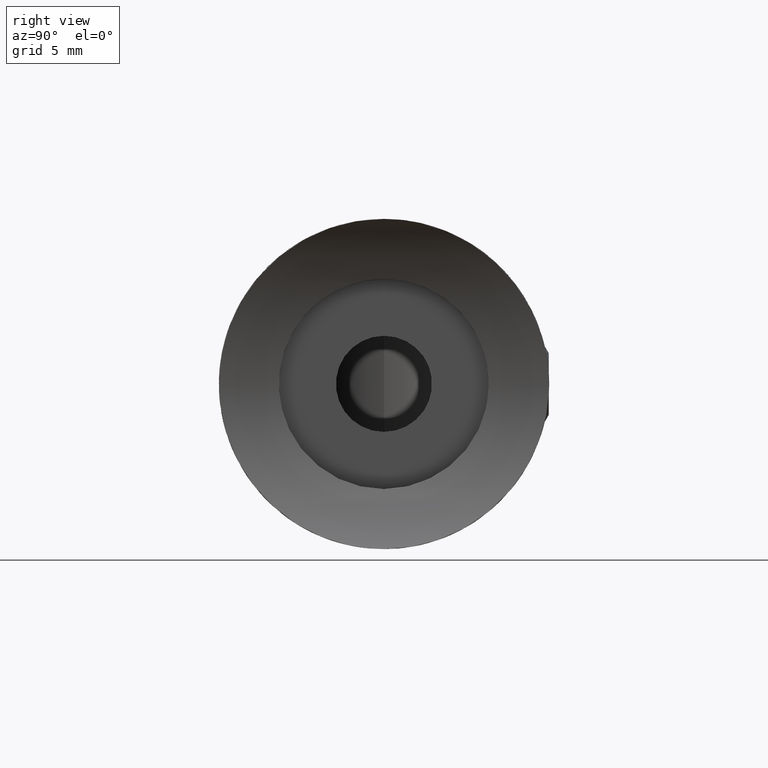
[diagram: clean part render]
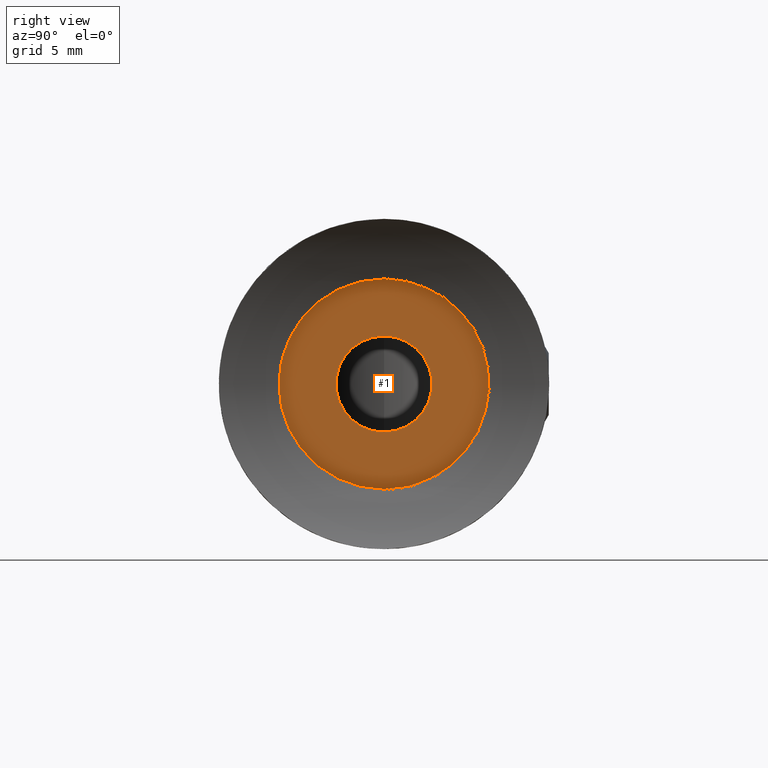
[diagram: same view with one face highlighted and labeled with its STEP entity id]
A machine part, right view. The second image highlights one B-rep face of the part: STEP entity #1.
In plain terms, the highlighted planar face has unit normal (1, 0, 0).
Its self-contained STEP definition (entity closure, byte-faithful):
#1 = ADVANCED_FACE ( 'NONE', ( #1910, #2771 ), #4035, .T. ) ;
#15 = DIRECTION ( 'NONE',  ( 0.0000000000000000000, 0.0000000000000000000, -1.000000000000000000 ) ) ;
#135 = DIRECTION ( 'NONE',  ( 0.0000000000000000000, 0.0000000000000000000, -1.000000000000000000 ) ) ;
#137 = ORIENTED_EDGE ( 'NONE', *, *, #4302, .F. ) ;
#143 = VERTEX_POINT ( 'NONE', #1832 ) ;
#175 = CARTESIAN_POINT ( 'NONE',  ( -8.288489208633095000, 0.0000000000000000000, 0.0000000000000000000 ) ) ;
#189 = ORIENTED_EDGE ( 'NONE', *, *, #1508, .F. ) ;
#323 = AXIS2_PLACEMENT_3D ( 'NONE', #3852, #2123, #15 ) ;
#367 = CIRCLE ( 'NONE', #1458, 6.999999999999999100 ) ;
#403 = AXIS2_PLACEMENT_3D ( 'NONE', #1451, #1470, #135 ) ;
#539 = VERTEX_POINT ( 'NONE', #1591 ) ;
#623 = DIRECTION ( 'NONE',  ( 1.000000000000000000, -0.0000000000000000000, -0.0000000000000000000 ) ) ;
#1160 = CIRCLE ( 'NONE', #403, 3.199999999999998000 ) ;
#1191 = EDGE_LOOP ( 'NONE', ( #4619, #2872 ) ) ;
#1433 = DIRECTION ( 'NONE',  ( 1.000000000000000000, 0.0000000000000000000, -0.0000000000000000000 ) ) ;
#1451 = CARTESIAN_POINT ( 'NONE',  ( -8.288489208633095000, 0.0000000000000000000, 0.0000000000000000000 ) ) ;
#1458 = AXIS2_PLACEMENT_3D ( 'NONE', #175, #623, #2164 ) ;
#1470 = DIRECTION ( 'NONE',  ( 1.000000000000000000, -0.0000000000000000000, -0.0000000000000000000 ) ) ;
#1508 = EDGE_CURVE ( 'NONE', #143, #4652, #3824, .T. ) ;
#1591 = CARTESIAN_POINT ( 'NONE',  ( -8.288489208633095000, 8.572527594031472200E-016, 6.999999999999999100 ) ) ;
#1832 = CARTESIAN_POINT ( 'NONE',  ( -8.288489208633095000, 0.0000000000000000000, -3.199999999999998000 ) ) ;
#1910 = FACE_OUTER_BOUND ( 'NONE', #1191, .T. ) ;
#2041 = AXIS2_PLACEMENT_3D ( 'NONE', #5283, #1433, #4001 ) ;
#2123 = DIRECTION ( 'NONE',  ( 1.000000000000000000, -0.0000000000000000000, -0.0000000000000000000 ) ) ;
#2164 = DIRECTION ( 'NONE',  ( 0.0000000000000000000, 0.0000000000000000000, -1.000000000000000000 ) ) ;
#2466 = CARTESIAN_POINT ( 'NONE',  ( -8.288489208633095000, 0.0000000000000000000, 0.0000000000000000000 ) ) ;
#2492 = CARTESIAN_POINT ( 'NONE',  ( -8.288489208633095000, 0.0000000000000000000, -6.999999999999999100 ) ) ;
#2771 = FACE_BOUND ( 'NONE', #4489, .T. ) ;
#2872 = ORIENTED_EDGE ( 'NONE', *, *, #5160, .T. ) ;
#2919 = DIRECTION ( 'NONE',  ( 1.000000000000000000, -0.0000000000000000000, -0.0000000000000000000 ) ) ;
#3266 = CIRCLE ( 'NONE', #5047, 6.999999999999999100 ) ;
#3386 = DIRECTION ( 'NONE',  ( 0.0000000000000000000, 0.0000000000000000000, -1.000000000000000000 ) ) ;
#3623 = VERTEX_POINT ( 'NONE', #2492 ) ;
#3824 = CIRCLE ( 'NONE', #323, 3.199999999999998000 ) ;
#3852 = CARTESIAN_POINT ( 'NONE',  ( -8.288489208633095000, 0.0000000000000000000, 0.0000000000000000000 ) ) ;
#4001 = DIRECTION ( 'NONE',  ( -0.0000000000000000000, 0.0000000000000000000, -1.000000000000000000 ) ) ;
#4035 = PLANE ( 'NONE',  #2041 ) ;
#4204 = EDGE_CURVE ( 'NONE', #3623, #539, #367, .T. ) ;
#4302 = EDGE_CURVE ( 'NONE', #4652, #143, #1160, .T. ) ;
#4489 = EDGE_LOOP ( 'NONE', ( #189, #137 ) ) ;
#4619 = ORIENTED_EDGE ( 'NONE', *, *, #4204, .T. ) ;
#4652 = VERTEX_POINT ( 'NONE', #5372 ) ;
#5047 = AXIS2_PLACEMENT_3D ( 'NONE', #2466, #2919, #3386 ) ;
#5160 = EDGE_CURVE ( 'NONE', #539, #3623, #3266, .T. ) ;
#5283 = CARTESIAN_POINT ( 'NONE',  ( -8.288489208633095000, 6.999999999999999100, 0.0000000000000000000 ) ) ;
#5372 = CARTESIAN_POINT ( 'NONE',  ( -8.288489208633095000, 3.918869757271527500E-016, 3.199999999999998000 ) ) ;